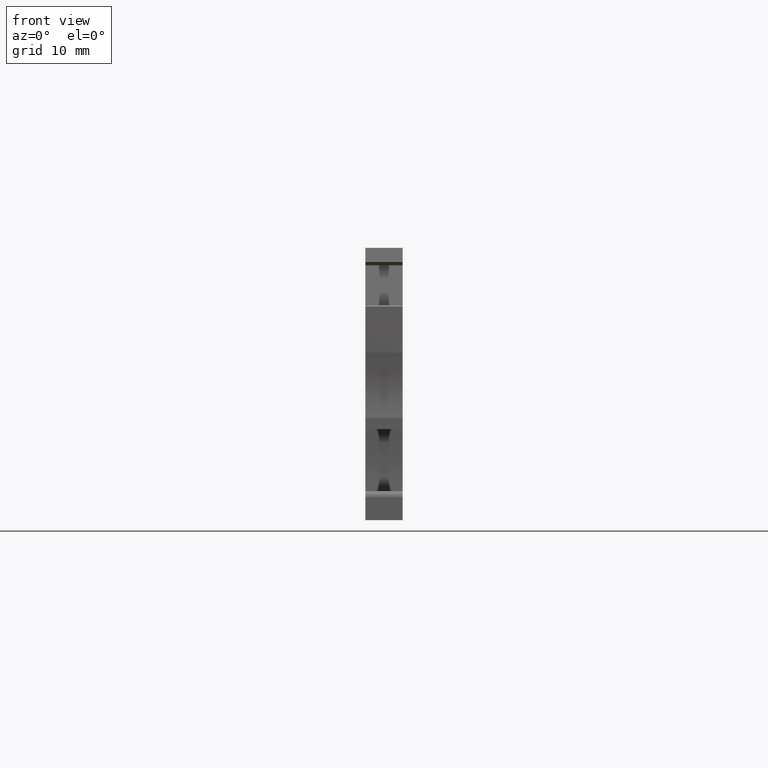
[diagram: clean part render]
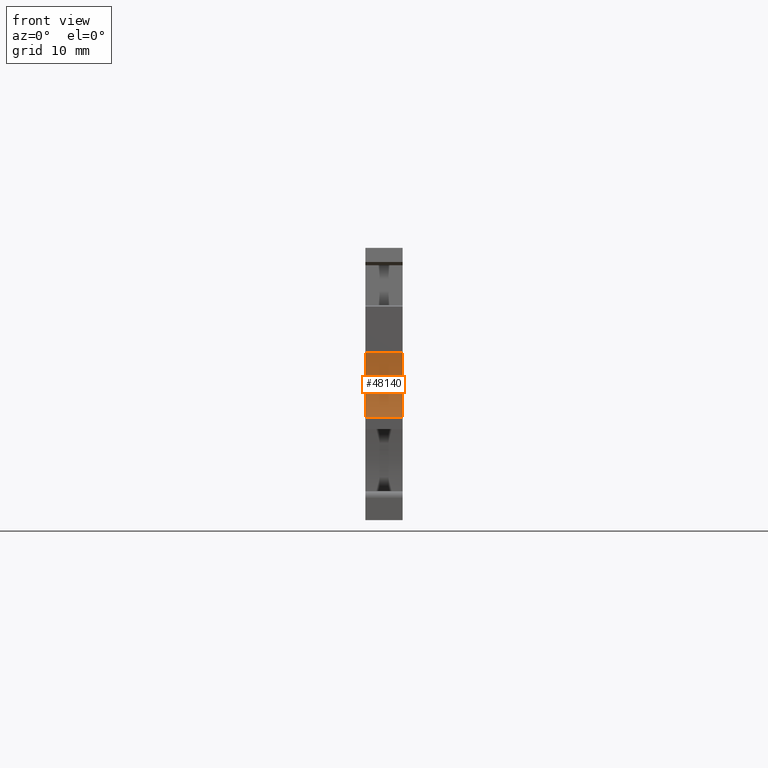
[diagram: same view with one face highlighted and labeled with its STEP entity id]
A machine part, front view. The second image highlights one B-rep face of the part: STEP entity #48140.
In plain terms, the highlighted cylindrical surface (partial cylindrical patch) has radius 15 mm, axis along (1, -0, 0).
Its self-contained STEP definition (entity closure, byte-faithful):
#4050=CARTESIAN_POINT('',(-12.5481881546684,15.6193450136062,
-5.15000000006929));
#4060=VERTEX_POINT('',#4050);
#4090=CARTESIAN_POINT('',(-26.2022063583376,9.40904816934251,
-5.15000000007395));
#4100=DIRECTION('',(-2.48736047506293E-14,-2.91886266429657E-15,1.));
#4110=DIRECTION('',(-0.992546151641323,-0.121869343405144,
-2.50439205489866E-14));
#4120=AXIS2_PLACEMENT_3D('',#4090,#4100,#4110);
#4130=CIRCLE('',#4120,15.);
#4140=CARTESIAN_POINT('',(-11.451364064022,6.68642964883118,
-5.15000000007445));
#4150=VERTEX_POINT('',#4140);
#4160=EDGE_CURVE('',#4150,#4060,#4130,.T.);
#9530=CARTESIAN_POINT('',(-11.4513640640204,6.68642964884028,
9.75754671042949E-11));
#9540=VERTEX_POINT('',#9530);
#9570=CARTESIAN_POINT('',(-26.2022063583377,9.4090481693425,
1.04337258896055E-10));
#9580=DIRECTION('',(-2.48736047506293E-14,-2.91886266429657E-15,1.));
#9590=DIRECTION('',(-0.992546151641323,-0.121869343405144,
-2.50439205489866E-14));
#9600=AXIS2_PLACEMENT_3D('',#9570,#9580,#9590);
#9610=CIRCLE('',#9600,15.);
#9620=CARTESIAN_POINT('',(-12.5481881546689,15.6193450136094,
9.70556994593247E-11));
#9630=VERTEX_POINT('',#9620);
#9640=EDGE_CURVE('',#9540,#9630,#9610,.T.);
#47930=CARTESIAN_POINT('',(-26.2022063583376,9.40904816934251,
-5.15000000006275));
#47940=DIRECTION('',(-2.48736047506293E-14,-2.91886266429657E-15,1.));
#47950=DIRECTION('',(-0.992546151641323,-0.121869343405144,
-2.50403622964062E-14));
#47960=AXIS2_PLACEMENT_3D('',#47930,#47940,#47950);
#47970=CYLINDRICAL_SURFACE('',#47960,15.);
#47980=ORIENTED_EDGE('',*,*,#4160,.F.);
#47990=CARTESIAN_POINT('',(-12.5481881546689,15.6193450136105,
-5.15000000006239));
#48000=DIRECTION('',(-2.48736047506293E-14,-2.91886266429657E-15,1.));
#48010=VECTOR('',#48000,1.);
#48020=LINE('',#47990,#48010);
#48030=EDGE_CURVE('',#4060,#9630,#48020,.T.);
#48040=ORIENTED_EDGE('',*,*,#48030,.F.);
#48050=ORIENTED_EDGE('',*,*,#9640,.T.);
#48060=CARTESIAN_POINT('',(-11.4513640640203,6.68642964884022,
-5.15000000006239));
#48070=DIRECTION('',(2.48736047506293E-14,2.91886266429657E-15,-1.));
#48080=VECTOR('',#48070,1.);
#48090=LINE('',#48060,#48080);
#48100=EDGE_CURVE('',#9540,#4150,#48090,.T.);
#48110=ORIENTED_EDGE('',*,*,#48100,.F.);
#48120=EDGE_LOOP('',(#48110,#48050,#48040,#47980));
#48130=FACE_OUTER_BOUND('',#48120,.T.);
#48140=ADVANCED_FACE('',(#48130),#47970,.F.);